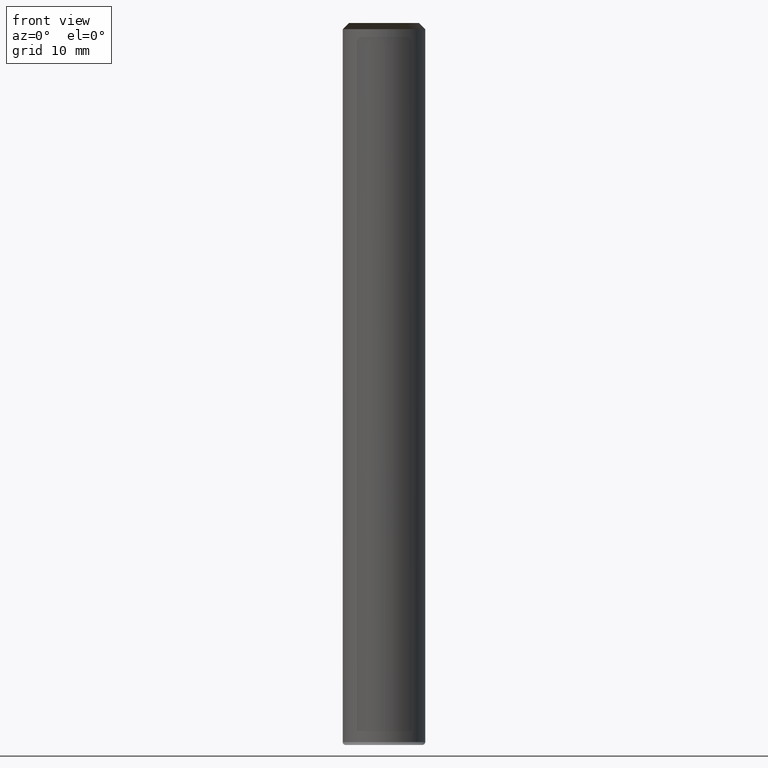
[diagram: clean part render]
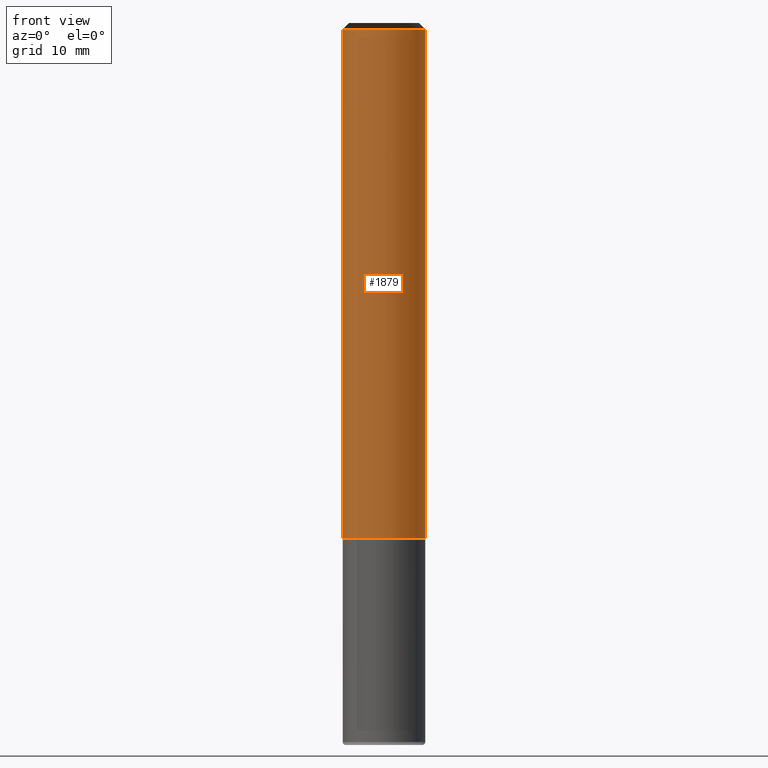
[diagram: same view with one face highlighted and labeled with its STEP entity id]
A machine part, front view. The second image highlights one B-rep face of the part: STEP entity #1879.
In plain terms, the highlighted face is a freeform B-spline surface patch.
Its self-contained STEP definition (entity closure, byte-faithful):
#1574=CARTESIAN_POINT('',(4.0,0.0,0.0));
#1578=CARTESIAN_POINT('',(-4.0,0.0,0.0));
#1595=CARTESIAN_POINT('',(-4.0,-4.0,0.0));
#1596=CARTESIAN_POINT('',(0.0,-4.0,0.0));
#1597=CARTESIAN_POINT('',(4.0,-4.0,0.0));
#1598=CARTESIAN_POINT('',(4.0,0.0,49.4));
#1602=CARTESIAN_POINT('',(-4.0,0.0,49.4));
#1609=CARTESIAN_POINT('',(-4.0,-4.0,49.4));
#1610=CARTESIAN_POINT('',(0.0,-4.0,49.4));
#1611=CARTESIAN_POINT('',(4.0,-4.0,49.4));
#1860=(
BOUNDED_SURFACE()
B_SPLINE_SURFACE(1,2,(
(#1578,#1595,#1596,#1597,#1574),
(#1602,#1609,#1610,#1611,#1598)
), .UNSPECIFIED.,.F.,.F.,.F.)
B_SPLINE_SURFACE_WITH_KNOTS((2,2),(3,2,3),(
0.0,1.0),(
0.0,0.5,1.0), .UNSPECIFIED.)
GEOMETRIC_REPRESENTATION_ITEM()
RATIONAL_B_SPLINE_SURFACE(((1.0,0.707106781187,1.0,0.707106781187,1.0),
(1.0,0.707106781187,1.0,0.707106781187,1.0)
))
REPRESENTATION_ITEM('')
SURFACE()
);
#1861=(
BOUNDED_CURVE()
B_SPLINE_CURVE(1,(#1602,#1578),.UNSPECIFIED.,.F.,.F.)
B_SPLINE_CURVE_WITH_KNOTS((2,2),
(0.0,1.0),.UNSPECIFIED.)
CURVE()
GEOMETRIC_REPRESENTATION_ITEM()
RATIONAL_B_SPLINE_CURVE((1.0,1.0))
REPRESENTATION_ITEM('')
);
#1862=(
BOUNDED_CURVE()
B_SPLINE_CURVE(2,(#1578,#1595,#1596,#1597,#1574),.UNSPECIFIED.,.F.,.F.)
B_SPLINE_CURVE_WITH_KNOTS((3,2,3),
(0.0,0.5,1.0),.UNSPECIFIED.)
CURVE()
GEOMETRIC_REPRESENTATION_ITEM()
RATIONAL_B_SPLINE_CURVE((1.0,0.707106781187,1.0,0.707106781187,1.0))
REPRESENTATION_ITEM('')
);
#1863=(
BOUNDED_CURVE()
B_SPLINE_CURVE(1,(#1574,#1598),.UNSPECIFIED.,.F.,.F.)
B_SPLINE_CURVE_WITH_KNOTS((2,2),
(0.0,1.0),.UNSPECIFIED.)
CURVE()
GEOMETRIC_REPRESENTATION_ITEM()
RATIONAL_B_SPLINE_CURVE((1.0,1.0))
REPRESENTATION_ITEM('')
);
#1864=(
BOUNDED_CURVE()
B_SPLINE_CURVE(2,(#1598,#1611,#1610,#1609,#1602),.UNSPECIFIED.,.F.,.F.)
B_SPLINE_CURVE_WITH_KNOTS((3,2,3),
(0.0,0.5,1.0),.UNSPECIFIED.)
CURVE()
GEOMETRIC_REPRESENTATION_ITEM()
RATIONAL_B_SPLINE_CURVE((1.0,0.707106781187,1.0,0.707106781187,1.0))
REPRESENTATION_ITEM('')
);
#1865=VERTEX_POINT('',#1574);
#1866=VERTEX_POINT('',#1578);
#1867=VERTEX_POINT('',#1598);
#1868=VERTEX_POINT('',#1602);
#1869=EDGE_CURVE('',#1868,#1866,#1861,.T.);
#1870=EDGE_CURVE('',#1866,#1865,#1862,.T.);
#1871=EDGE_CURVE('',#1865,#1867,#1863,.T.);
#1872=EDGE_CURVE('',#1867,#1868,#1864,.T.);
#1873=ORIENTED_EDGE('',*,*,#1869,.T.);
#1874=ORIENTED_EDGE('',*,*,#1870,.T.);
#1875=ORIENTED_EDGE('',*,*,#1871,.T.);
#1876=ORIENTED_EDGE('',*,*,#1872,.T.);
#1877=EDGE_LOOP('',(#1873,#1874,#1875,#1876));
#1878=FACE_OUTER_BOUND('',#1877,.T.);
#1879=ADVANCED_FACE('',(#1878),#1860,.T.);